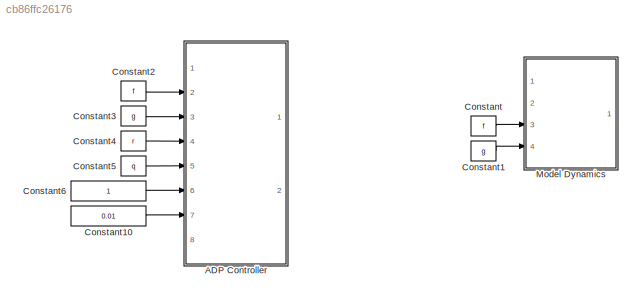
MODEL slx_cb86ffc26176
KIND model
CONFIG AbsTol = auto
CONFIG EnableMultiTasking = off
CONFIG FixedStep = 0.01
CONFIG MaxStep = auto
CONFIG MinStep = auto
CONFIG RelTol = 1e-3
CONFIG SampleTimeConstraint = Unconstrained
CONFIG Solver = FixedStepAuto
CONFIG SolverName = FixedStepAuto
CONFIG StartTime = 0.0
CONFIG StopTime = 3000
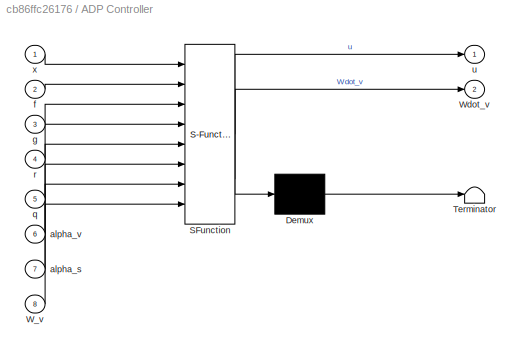
BLOCK [SubSystem] ADP Controller
  ErrorFcn = Stateflow.Translate.translate
  PermitHierarchicalResolution = ExplicitOnly
  Ports = [8, 2]
  SFBlockType = MATLAB Function
  TreatAsAtomicUnit = on
BLOCK [Demux] ADP Controller/ Demux 
  Outputs = 1
  Ports = [1, 1]
BLOCK [S-Function] ADP Controller/ SFunction 
  EnableBusSupport = on
  FunctionName = sf_sfun
  PortCounts = [8 3]
  Ports = [8, 3]
  SFcnIsStateOwnerBlock = off
  SFunctionDeploymentMode = off
  Tag = Stateflow S-Function model_adp_TODO_2017b 1
BLOCK [Terminator] ADP Controller/ Terminator 
BLOCK [Inport] ADP Controller/W_v
  Port = 8
BLOCK [Outport] ADP Controller/Wdot_v
  Port = 2
BLOCK [Inport] ADP Controller/alpha_s
  Port = 7
BLOCK [Inport] ADP Controller/alpha_v
  Port = 6
BLOCK [Inport] ADP Controller/f
  Port = 2
BLOCK [Inport] ADP Controller/g
  Port = 3
BLOCK [Inport] ADP Controller/q
  Port = 5
BLOCK [Inport] ADP Controller/r
  Port = 4
BLOCK [Outport] ADP Controller/u
BLOCK [Inport] ADP Controller/x
BLOCK [Constant] Constant
  Value = f
BLOCK [Constant] Constant1
  Value = g
BLOCK [Constant] Constant10
  Value = 0.01
BLOCK [Constant] Constant2
  Value = f
BLOCK [Constant] Constant3
  Value = g
BLOCK [Constant] Constant4
  Value = r
BLOCK [Constant] Constant5
  Value = q
BLOCK [Constant] Constant6
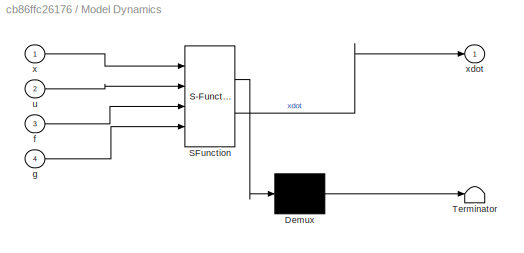
BLOCK [SubSystem] Model Dynamics
  ErrorFcn = Stateflow.Translate.translate
  PermitHierarchicalResolution = ExplicitOnly
  Ports = [4, 1]
  SFBlockType = MATLAB Function
  TreatAsAtomicUnit = on
BLOCK [Demux] Model Dynamics/ Demux 
  Outputs = 1
  Ports = [1, 1]
BLOCK [S-Function] Model Dynamics/ SFunction 
  EnableBusSupport = on
  FunctionName = sf_sfun
  PortCounts = [4 2]
  Ports = [4, 2]
  SFcnIsStateOwnerBlock = off
  SFunctionDeploymentMode = off
  Tag = Stateflow S-Function model_adp_TODO_2017b 2
BLOCK [Terminator] Model Dynamics/ Terminator 
BLOCK [Inport] Model Dynamics/f
  Port = 3
BLOCK [Inport] Model Dynamics/g
  Port = 4
BLOCK [Inport] Model Dynamics/u
  Port = 2
BLOCK [Inport] Model Dynamics/x
BLOCK [Outport] Model Dynamics/xdot
LINE Constant10:1 -> ADP Controller:7
LINE Constant1:1 -> Model Dynamics:4
LINE Constant2:1 -> ADP Controller:2
LINE Constant3:1 -> ADP Controller:3
LINE Constant4:1 -> ADP Controller:4
LINE Constant5:1 -> ADP Controller:5
LINE Constant6:1 -> ADP Controller:6
LINE Constant:1 -> Model Dynamics:3
CHART ADP Controller states=1 transitions=1
  STATE_LABEL 'eML_blk_kernel()'
  STATE_LABEL 'SCRIPT:\nfunction [u, Wdot_v]= fcn(x, f, g, r, q, alpha_v, alpha_s, W_v)\nx1 = x(1);\nx2 = x(2);\nx3 = x(3);\nx4 = x(4);\n\n%% Basis function\n% mu_v = [x1^2; x1*x2; x1*x3; x1*x4;\n%         x2^2; x2*x3; x2*x4;\n%         x3^2; x3*x4;\n%         x4^2]; %TODO: Experiment with other basis gunctions, such as RBF.\ndmu_v = [2*x1    0     0     0;\n           x2   x1     0     0;\n           x3    0    x1     0;\n   ...<+558ch>'
CHART Model Dynamics states=1 transitions=1
  STATE_LABEL 'eML_blk_kernel()'
  STATE_LABEL 'SCRIPT:\nfunction xdot = fcn(x,u,f,g)\n    xdot = f*x + g*u;\nend'
